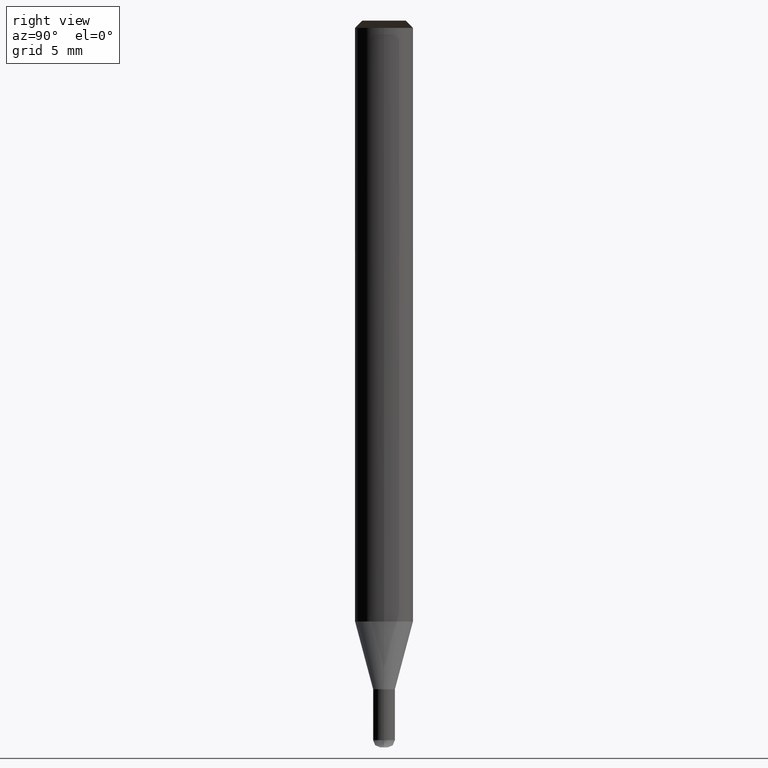
[diagram: clean part render]
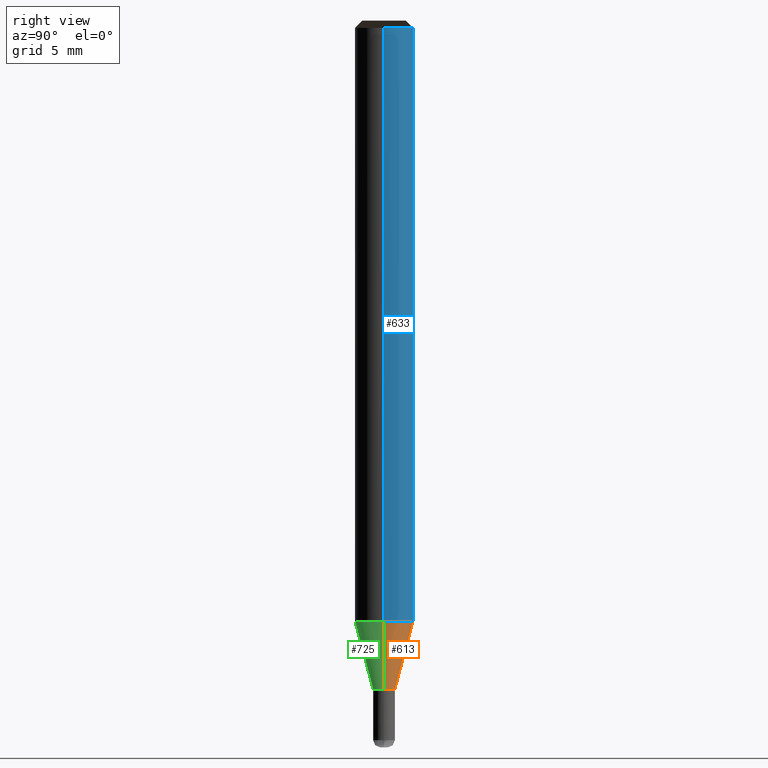
[diagram: same view with three faces highlighted in distinct colors, each labeled with its STEP entity id]
A machine part, right view with three faces highlighted in distinct colors.
Their STEP definitions:

[orange] entity #613 — the highlighted face is a freeform B-spline surface patch.
#370=CARTESIAN_POINT('',(0.75,0.0,-4.665063509461));
#371=CARTESIAN_POINT('',(0.75,0.75,-4.665063509461));
#372=CARTESIAN_POINT('',(0.0,0.75,-4.665063509461));
#373=CARTESIAN_POINT('',(-0.75,0.75,-4.665063509461));
#374=CARTESIAN_POINT('',(-0.75,0.0,-4.665063509461));
#375=CARTESIAN_POINT('',(2.0,0.0,-0.0));
#376=CARTESIAN_POINT('',(2.0,2.0,-0.0));
#377=CARTESIAN_POINT('',(0.0,2.0,-0.0));
#378=CARTESIAN_POINT('',(-2.0,2.0,-0.0));
#379=CARTESIAN_POINT('',(-2.0,0.0,-0.0));
#594=(
BOUNDED_SURFACE()
B_SPLINE_SURFACE(1,2,(
(#370,#371,#372,#373,#374),
(#375,#376,#377,#378,#379)
), .UNSPECIFIED.,.F.,.F.,.F.)
B_SPLINE_SURFACE_WITH_KNOTS((2,2),(3,2,3),(
0.0,1.0),(
0.0,0.5,1.0), .UNSPECIFIED.)
GEOMETRIC_REPRESENTATION_ITEM()
RATIONAL_B_SPLINE_SURFACE(((1.0,0.707106781187,1.0,0.707106781187,1.0),
(1.0,0.707106781187,1.0,0.707106781187,1.0)
))
REPRESENTATION_ITEM('')
SURFACE()
);
#595=(
BOUNDED_CURVE()
B_SPLINE_CURVE(2,(#375,#376,#377,#378,#379),.UNSPECIFIED.,.F.,.F.)
B_SPLINE_CURVE_WITH_KNOTS((3,2,3),
(0.0,0.5,1.0),.UNSPECIFIED.)
CURVE()
GEOMETRIC_REPRESENTATION_ITEM()
RATIONAL_B_SPLINE_CURVE((1.0,0.707106781187,1.0,0.707106781187,1.0))
REPRESENTATION_ITEM('')
);
#596=(
BOUNDED_CURVE()
B_SPLINE_CURVE(1,(#379,#374),.UNSPECIFIED.,.F.,.F.)
B_SPLINE_CURVE_WITH_KNOTS((2,2),
(0.0,1.0),.UNSPECIFIED.)
CURVE()
GEOMETRIC_REPRESENTATION_ITEM()
RATIONAL_B_SPLINE_CURVE((1.0,1.0))
REPRESENTATION_ITEM('')
);
#597=(
BOUNDED_CURVE()
B_SPLINE_CURVE(2,(#374,#373,#372,#371,#370),.UNSPECIFIED.,.F.,.F.)
B_SPLINE_CURVE_WITH_KNOTS((3,2,3),
(0.0,0.5,1.0),.UNSPECIFIED.)
CURVE()
GEOMETRIC_REPRESENTATION_ITEM()
RATIONAL_B_SPLINE_CURVE((1.0,0.707106781187,1.0,0.707106781187,1.0))
REPRESENTATION_ITEM('')
);
#598=(
BOUNDED_CURVE()
B_SPLINE_CURVE(1,(#370,#375),.UNSPECIFIED.,.F.,.F.)
B_SPLINE_CURVE_WITH_KNOTS((2,2),
(0.0,1.0),.UNSPECIFIED.)
CURVE()
GEOMETRIC_REPRESENTATION_ITEM()
RATIONAL_B_SPLINE_CURVE((1.0,1.0))
REPRESENTATION_ITEM('')
);
#599=VERTEX_POINT('',#370);
#600=VERTEX_POINT('',#374);
#601=VERTEX_POINT('',#375);
#602=VERTEX_POINT('',#379);
#603=EDGE_CURVE('',#601,#602,#595,.T.);
#604=EDGE_CURVE('',#602,#600,#596,.T.);
#605=EDGE_CURVE('',#600,#599,#597,.T.);
#606=EDGE_CURVE('',#599,#601,#598,.T.);
#607=ORIENTED_EDGE('',*,*,#603,.T.);
#608=ORIENTED_EDGE('',*,*,#604,.T.);
#609=ORIENTED_EDGE('',*,*,#605,.T.);
#610=ORIENTED_EDGE('',*,*,#606,.T.);
#611=EDGE_LOOP('',(#607,#608,#609,#610));
#612=FACE_OUTER_BOUND('',#611,.T.);
#613=ADVANCED_FACE('',(#612),#594,.T.);

[blue] entity #633 — the highlighted face is a freeform B-spline surface patch.
#375=CARTESIAN_POINT('',(2.0,0.0,-0.0));
#376=CARTESIAN_POINT('',(2.0,2.0,-0.0));
#377=CARTESIAN_POINT('',(0.0,2.0,-0.0));
#378=CARTESIAN_POINT('',(-2.0,2.0,-0.0));
#379=CARTESIAN_POINT('',(-2.0,0.0,-0.0));
#380=CARTESIAN_POINT('',(2.0,0.0,40.834936490539));
#381=CARTESIAN_POINT('',(2.0,2.0,40.834936490539));
#382=CARTESIAN_POINT('',(0.0,2.0,40.834936490539));
#383=CARTESIAN_POINT('',(-2.0,2.0,40.834936490539));
#384=CARTESIAN_POINT('',(-2.0,0.0,40.834936490539));
#614=(
BOUNDED_SURFACE()
B_SPLINE_SURFACE(1,2,(
(#375,#376,#377,#378,#379),
(#380,#381,#382,#383,#384)
), .UNSPECIFIED.,.F.,.F.,.F.)
B_SPLINE_SURFACE_WITH_KNOTS((2,2),(3,2,3),(
0.0,1.0),(
0.0,0.5,1.0), .UNSPECIFIED.)
GEOMETRIC_REPRESENTATION_ITEM()
RATIONAL_B_SPLINE_SURFACE(((1.0,0.707106781187,1.0,0.707106781187,1.0),
(1.0,0.707106781187,1.0,0.707106781187,1.0)
))
REPRESENTATION_ITEM('')
SURFACE()
);
#615=(
BOUNDED_CURVE()
B_SPLINE_CURVE(2,(#380,#381,#382,#383,#384),.UNSPECIFIED.,.F.,.F.)
B_SPLINE_CURVE_WITH_KNOTS((3,2,3),
(0.0,0.5,1.0),.UNSPECIFIED.)
CURVE()
GEOMETRIC_REPRESENTATION_ITEM()
RATIONAL_B_SPLINE_CURVE((1.0,0.707106781187,1.0,0.707106781187,1.0))
REPRESENTATION_ITEM('')
);
#616=(
BOUNDED_CURVE()
B_SPLINE_CURVE(1,(#384,#379),.UNSPECIFIED.,.F.,.F.)
B_SPLINE_CURVE_WITH_KNOTS((2,2),
(0.0,1.0),.UNSPECIFIED.)
CURVE()
GEOMETRIC_REPRESENTATION_ITEM()
RATIONAL_B_SPLINE_CURVE((1.0,1.0))
REPRESENTATION_ITEM('')
);
#617=(
BOUNDED_CURVE()
B_SPLINE_CURVE(2,(#379,#378,#377,#376,#375),.UNSPECIFIED.,.F.,.F.)
B_SPLINE_CURVE_WITH_KNOTS((3,2,3),
(0.0,0.5,1.0),.UNSPECIFIED.)
CURVE()
GEOMETRIC_REPRESENTATION_ITEM()
RATIONAL_B_SPLINE_CURVE((1.0,0.707106781187,1.0,0.707106781187,1.0))
REPRESENTATION_ITEM('')
);
#618=(
BOUNDED_CURVE()
B_SPLINE_CURVE(1,(#375,#380),.UNSPECIFIED.,.F.,.F.)
B_SPLINE_CURVE_WITH_KNOTS((2,2),
(0.0,1.0),.UNSPECIFIED.)
CURVE()
GEOMETRIC_REPRESENTATION_ITEM()
RATIONAL_B_SPLINE_CURVE((1.0,1.0))
REPRESENTATION_ITEM('')
);
#619=VERTEX_POINT('',#375);
#620=VERTEX_POINT('',#379);
#621=VERTEX_POINT('',#380);
#622=VERTEX_POINT('',#384);
#623=EDGE_CURVE('',#621,#622,#615,.T.);
#624=EDGE_CURVE('',#622,#620,#616,.T.);
#625=EDGE_CURVE('',#620,#619,#617,.T.);
#626=EDGE_CURVE('',#619,#621,#618,.T.);
#627=ORIENTED_EDGE('',*,*,#623,.T.);
#628=ORIENTED_EDGE('',*,*,#624,.T.);
#629=ORIENTED_EDGE('',*,*,#625,.T.);
#630=ORIENTED_EDGE('',*,*,#626,.T.);
#631=EDGE_LOOP('',(#627,#628,#629,#630));
#632=FACE_OUTER_BOUND('',#631,.T.);
#633=ADVANCED_FACE('',(#632),#614,.T.);

[green] entity #725 — the highlighted face is a freeform B-spline surface patch.
#370=CARTESIAN_POINT('',(0.75,0.0,-4.665063509461));
#374=CARTESIAN_POINT('',(-0.75,0.0,-4.665063509461));
#375=CARTESIAN_POINT('',(2.0,0.0,-0.0));
#379=CARTESIAN_POINT('',(-2.0,0.0,-0.0));
#391=CARTESIAN_POINT('',(-0.75,-0.75,-4.665063509461));
#392=CARTESIAN_POINT('',(0.0,-0.75,-4.665063509461));
#393=CARTESIAN_POINT('',(0.75,-0.75,-4.665063509461));
#394=CARTESIAN_POINT('',(-2.0,-2.0,-0.0));
#395=CARTESIAN_POINT('',(0.0,-2.0,-0.0));
#396=CARTESIAN_POINT('',(2.0,-2.0,-0.0));
#706=(
BOUNDED_SURFACE()
B_SPLINE_SURFACE(1,2,(
(#374,#391,#392,#393,#370),
(#379,#394,#395,#396,#375)
), .UNSPECIFIED.,.F.,.F.,.F.)
B_SPLINE_SURFACE_WITH_KNOTS((2,2),(3,2,3),(
0.0,1.0),(
0.0,0.5,1.0), .UNSPECIFIED.)
GEOMETRIC_REPRESENTATION_ITEM()
RATIONAL_B_SPLINE_SURFACE(((1.0,0.707106781187,1.0,0.707106781187,1.0),
(1.0,0.707106781187,1.0,0.707106781187,1.0)
))
REPRESENTATION_ITEM('')
SURFACE()
);
#707=(
BOUNDED_CURVE()
B_SPLINE_CURVE(1,(#379,#374),.UNSPECIFIED.,.F.,.F.)
B_SPLINE_CURVE_WITH_KNOTS((2,2),
(0.0,1.0),.UNSPECIFIED.)
CURVE()
GEOMETRIC_REPRESENTATION_ITEM()
RATIONAL_B_SPLINE_CURVE((1.0,1.0))
REPRESENTATION_ITEM('')
);
#708=(
BOUNDED_CURVE()
B_SPLINE_CURVE(2,(#374,#391,#392,#393,#370),.UNSPECIFIED.,.F.,.F.)
B_SPLINE_CURVE_WITH_KNOTS((3,2,3),
(0.0,0.5,1.0),.UNSPECIFIED.)
CURVE()
GEOMETRIC_REPRESENTATION_ITEM()
RATIONAL_B_SPLINE_CURVE((1.0,0.707106781187,1.0,0.707106781187,1.0))
REPRESENTATION_ITEM('')
);
#709=(
BOUNDED_CURVE()
B_SPLINE_CURVE(1,(#370,#375),.UNSPECIFIED.,.F.,.F.)
B_SPLINE_CURVE_WITH_KNOTS((2,2),
(0.0,1.0),.UNSPECIFIED.)
CURVE()
GEOMETRIC_REPRESENTATION_ITEM()
RATIONAL_B_SPLINE_CURVE((1.0,1.0))
REPRESENTATION_ITEM('')
);
#710=(
BOUNDED_CURVE()
B_SPLINE_CURVE(2,(#375,#396,#395,#394,#379),.UNSPECIFIED.,.F.,.F.)
B_SPLINE_CURVE_WITH_KNOTS((3,2,3),
(0.0,0.5,1.0),.UNSPECIFIED.)
CURVE()
GEOMETRIC_REPRESENTATION_ITEM()
RATIONAL_B_SPLINE_CURVE((1.0,0.707106781187,1.0,0.707106781187,1.0))
REPRESENTATION_ITEM('')
);
#711=VERTEX_POINT('',#370);
#712=VERTEX_POINT('',#374);
#713=VERTEX_POINT('',#375);
#714=VERTEX_POINT('',#379);
#715=EDGE_CURVE('',#714,#712,#707,.T.);
#716=EDGE_CURVE('',#712,#711,#708,.T.);
#717=EDGE_CURVE('',#711,#713,#709,.T.);
#718=EDGE_CURVE('',#713,#714,#710,.T.);
#719=ORIENTED_EDGE('',*,*,#715,.T.);
#720=ORIENTED_EDGE('',*,*,#716,.T.);
#721=ORIENTED_EDGE('',*,*,#717,.T.);
#722=ORIENTED_EDGE('',*,*,#718,.T.);
#723=EDGE_LOOP('',(#719,#720,#721,#722));
#724=FACE_OUTER_BOUND('',#723,.T.);
#725=ADVANCED_FACE('',(#724),#706,.T.);